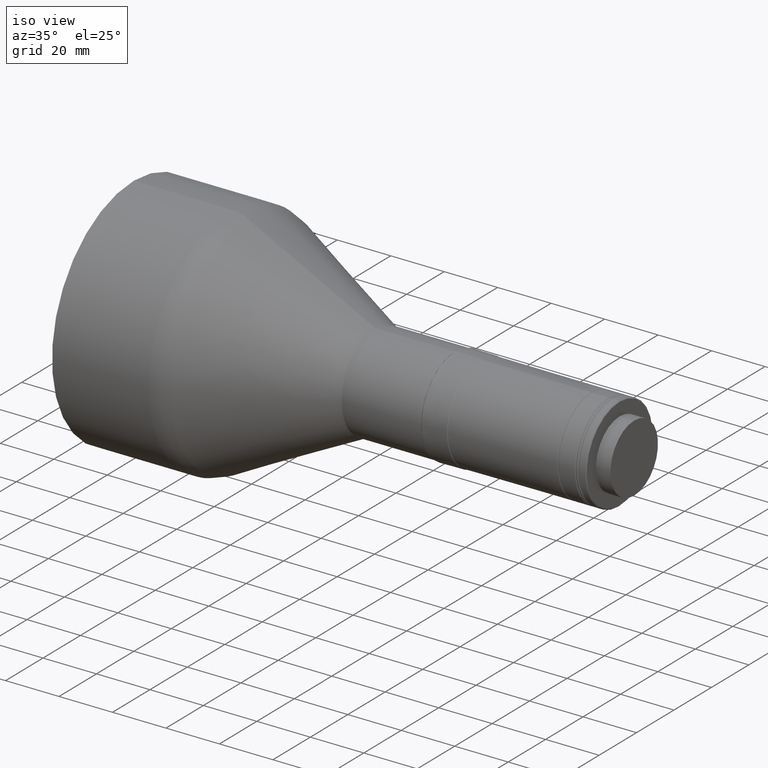
[diagram: clean part render]
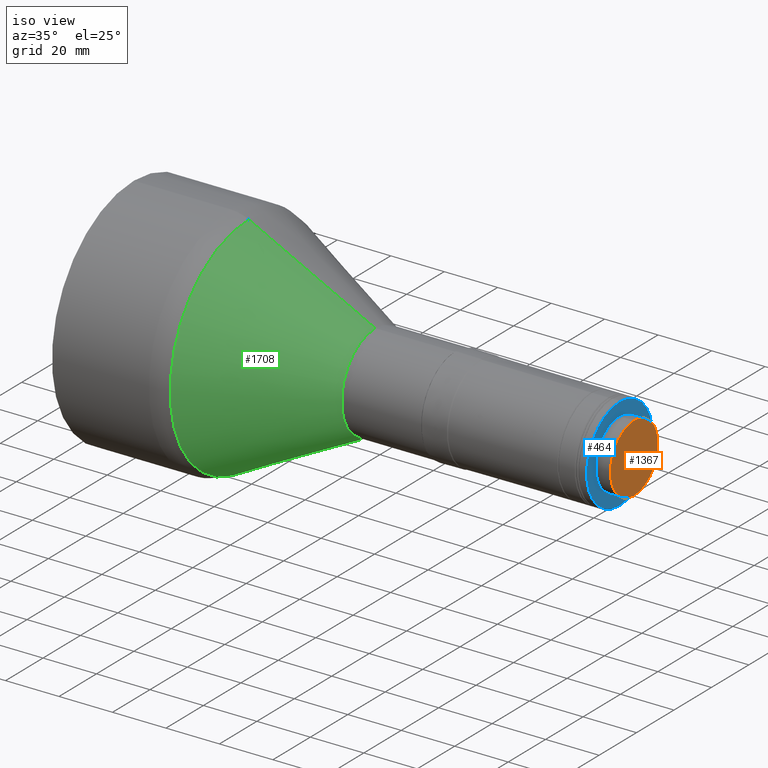
[diagram: same view with three faces highlighted in distinct colors, each labeled with its STEP entity id]
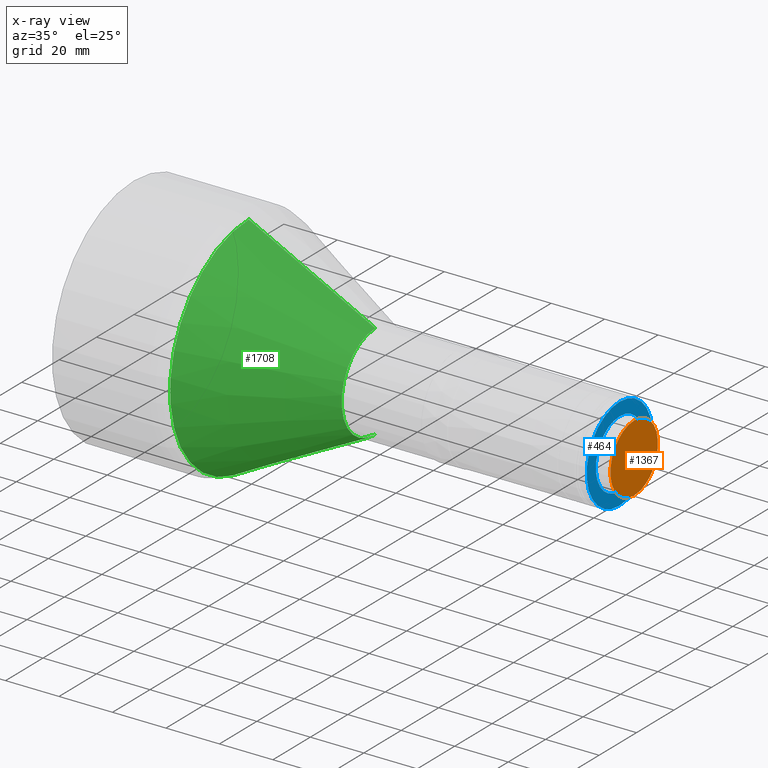
[diagram: x-ray of the same camera — body ghosted, the three highlighted faces saturated]
A machine part, iso view with three faces highlighted in distinct colors.
The next image is the same camera in x-ray (body ghosted, the three faces saturated) — at least one of them is partly hidden behind the body in this view.
Their STEP definitions:

[orange] entity #1367 — the highlighted planar face has unit normal (1, 0, 0).
#35 = PLANE ( 'NONE',  #1332 ) ;
#155 = ORIENTED_EDGE ( 'NONE', *, *, #2130, .F. ) ;
#468 = DIRECTION ( 'NONE',  ( 0.0000000000000000000, 0.0000000000000000000, 1.000000000000000000 ) ) ;
#479 = ORIENTED_EDGE ( 'NONE', *, *, #1539, .F. ) ;
#764 = DIRECTION ( 'NONE',  ( 1.000000000000000000, 0.0000000000000000000, 0.0000000000000000000 ) ) ;
#982 = AXIS2_PLACEMENT_3D ( 'NONE', #1680, #2072, #468 ) ;
#1082 = VERTEX_POINT ( 'NONE', #1913 ) ;
#1118 = CIRCLE ( 'NONE', #982, 12.69999999992158000 ) ;
#1332 = AXIS2_PLACEMENT_3D ( 'NONE', #2038, #764, #2018 ) ;
#1366 = DIRECTION ( 'NONE',  ( -1.000000000000000000, -0.0000000000000000000, -0.0000000000000000000 ) ) ;
#1367 = ADVANCED_FACE ( 'NONE', ( #2209 ), #35, .T. ) ;
#1539 = EDGE_CURVE ( 'NONE', #1082, #1596, #1782, .T. ) ;
#1542 = CARTESIAN_POINT ( 'NONE',  ( 163.1284704778615500, 0.0000000000000000000, -176.8109999999215600 ) ) ;
#1596 = VERTEX_POINT ( 'NONE', #1542 ) ;
#1628 = EDGE_LOOP ( 'NONE', ( #155, #479 ) ) ;
#1680 = CARTESIAN_POINT ( 'NONE',  ( 163.1284704778615500, 0.0000000000000000000, -164.1109999999999900 ) ) ;
#1703 = AXIS2_PLACEMENT_3D ( 'NONE', #2096, #1366, #2268 ) ;
#1782 = CIRCLE ( 'NONE', #1703, 12.69999999992158000 ) ;
#1913 = CARTESIAN_POINT ( 'NONE',  ( 163.1284704778615500, 1.555301434907535800E-015, -151.4110000000783900 ) ) ;
#2018 = DIRECTION ( 'NONE',  ( 0.0000000000000000000, 0.0000000000000000000, -1.000000000000000000 ) ) ;
#2038 = CARTESIAN_POINT ( 'NONE',  ( 163.1284704778615500, 0.0000000000000000000, -164.1109999999999900 ) ) ;
#2072 = DIRECTION ( 'NONE',  ( -1.000000000000000000, -0.0000000000000000000, -0.0000000000000000000 ) ) ;
#2096 = CARTESIAN_POINT ( 'NONE',  ( 163.1284704778615500, 0.0000000000000000000, -164.1109999999999900 ) ) ;
#2130 = EDGE_CURVE ( 'NONE', #1596, #1082, #1118, .T. ) ;
#2209 = FACE_OUTER_BOUND ( 'NONE', #1628, .T. ) ;
#2268 = DIRECTION ( 'NONE',  ( 0.0000000000000000000, 0.0000000000000000000, 1.000000000000000000 ) ) ;

[blue] entity #464 — the highlighted planar face has unit normal (1, 0, 0).
#33 = DIRECTION ( 'NONE',  ( 0.0000000000000000000, 0.0000000000000000000, 1.000000000000000000 ) ) ;
#45 = EDGE_CURVE ( 'NONE', #793, #1160, #1879, .T. ) ;
#60 = AXIS2_PLACEMENT_3D ( 'NONE', #1395, #148, #1208 ) ;
#142 = PLANE ( 'NONE',  #60 ) ;
#148 = DIRECTION ( 'NONE',  ( 1.000000000000000000, 0.0000000000000000000, 0.0000000000000000000 ) ) ;
#415 = CIRCLE ( 'NONE', #2143, 17.57567368403043100 ) ;
#464 = ADVANCED_FACE ( 'NONE', ( #1491, #1011 ), #142, .T. ) ;
#520 = EDGE_LOOP ( 'NONE', ( #911, #1440 ) ) ;
#526 = CARTESIAN_POINT ( 'NONE',  ( 157.6577700458919900, 0.0000000000000000000, -176.7783454461405500 ) ) ;
#631 = VERTEX_POINT ( 'NONE', #526 ) ;
#677 = DIRECTION ( 'NONE',  ( 0.0000000000000000000, 0.0000000000000000000, 1.000000000000000000 ) ) ;
#760 = DIRECTION ( 'NONE',  ( -1.000000000000000000, -0.0000000000000000000, -0.0000000000000000000 ) ) ;
#793 = VERTEX_POINT ( 'NONE', #1359 ) ;
#814 = AXIS2_PLACEMENT_3D ( 'NONE', #1202, #1402, #677 ) ;
#904 = DIRECTION ( 'NONE',  ( 0.0000000000000000000, 0.0000000000000000000, 1.000000000000000000 ) ) ;
#907 = VERTEX_POINT ( 'NONE', #2010 ) ;
#911 = ORIENTED_EDGE ( 'NONE', *, *, #2067, .T. ) ;
#966 = EDGE_CURVE ( 'NONE', #907, #631, #1770, .T. ) ;
#1011 = FACE_OUTER_BOUND ( 'NONE', #1963, .T. ) ;
#1049 = ORIENTED_EDGE ( 'NONE', *, *, #45, .F. ) ;
#1091 = CARTESIAN_POINT ( 'NONE',  ( 157.6577700458919900, 0.0000000000000000000, -164.1109999999999900 ) ) ;
#1111 = CARTESIAN_POINT ( 'NONE',  ( 157.6577700458919900, 0.0000000000000000000, -164.1109999999999900 ) ) ;
#1115 = AXIS2_PLACEMENT_3D ( 'NONE', #2042, #2079, #1164 ) ;
#1150 = CIRCLE ( 'NONE', #1374, 12.66734544614056500 ) ;
#1160 = VERTEX_POINT ( 'NONE', #1190 ) ;
#1164 = DIRECTION ( 'NONE',  ( 0.0000000000000000000, 0.0000000000000000000, 1.000000000000000000 ) ) ;
#1190 = CARTESIAN_POINT ( 'NONE',  ( 157.6577700458919900, 2.170632033932781200E-015, -181.6866736840304100 ) ) ;
#1202 = CARTESIAN_POINT ( 'NONE',  ( 157.6577700458919900, 0.0000000000000000000, -164.1109999999999900 ) ) ;
#1208 = DIRECTION ( 'NONE',  ( 0.0000000000000000000, 0.0000000000000000000, -1.000000000000000000 ) ) ;
#1258 = ORIENTED_EDGE ( 'NONE', *, *, #2170, .F. ) ;
#1359 = CARTESIAN_POINT ( 'NONE',  ( 157.6577700458919900, 0.0000000000000000000, -146.5353263159695400 ) ) ;
#1374 = AXIS2_PLACEMENT_3D ( 'NONE', #1111, #760, #904 ) ;
#1395 = CARTESIAN_POINT ( 'NONE',  ( 157.6577700458919900, 0.0000000000000000000, -164.1109999999999900 ) ) ;
#1402 = DIRECTION ( 'NONE',  ( -1.000000000000000000, -0.0000000000000000000, -0.0000000000000000000 ) ) ;
#1440 = ORIENTED_EDGE ( 'NONE', *, *, #966, .T. ) ;
#1491 = FACE_BOUND ( 'NONE', #520, .T. ) ;
#1770 = CIRCLE ( 'NONE', #1115, 12.66734544614056500 ) ;
#1835 = DIRECTION ( 'NONE',  ( -1.000000000000000000, -0.0000000000000000000, -0.0000000000000000000 ) ) ;
#1879 = CIRCLE ( 'NONE', #814, 17.57567368403043100 ) ;
#1963 = EDGE_LOOP ( 'NONE', ( #1049, #1258 ) ) ;
#2010 = CARTESIAN_POINT ( 'NONE',  ( 157.6577700458919900, 1.553301920169262000E-015, -151.4436545538594000 ) ) ;
#2042 = CARTESIAN_POINT ( 'NONE',  ( 157.6577700458919900, 0.0000000000000000000, -164.1109999999999900 ) ) ;
#2067 = EDGE_CURVE ( 'NONE', #631, #907, #1150, .T. ) ;
#2079 = DIRECTION ( 'NONE',  ( -1.000000000000000000, -0.0000000000000000000, -0.0000000000000000000 ) ) ;
#2143 = AXIS2_PLACEMENT_3D ( 'NONE', #1091, #1835, #33 ) ;
#2170 = EDGE_CURVE ( 'NONE', #1160, #793, #415, .T. ) ;

[green] entity #1708 — the highlighted conical surface has half-angle 26.96 deg.
#15 = CARTESIAN_POINT ( 'NONE',  ( 66.30158704577129900, 0.0000000000000000000, -164.1109999999999900 ) ) ;
#99 = DIRECTION ( 'NONE',  ( 0.0000000000000000000, 0.0000000000000000000, 1.000000000000000000 ) ) ;
#113 = ORIENTED_EDGE ( 'NONE', *, *, #766, .F. ) ;
#115 = DIRECTION ( 'NONE',  ( -0.8913258760542103200, 0.0000000000000000000, 0.4533631906939451500 ) ) ;
#146 = EDGE_CURVE ( 'NONE', #1143, #882, #1625, .T. ) ;
#366 = AXIS2_PLACEMENT_3D ( 'NONE', #1765, #1035, #1754 ) ;
#421 = FACE_OUTER_BOUND ( 'NONE', #827, .T. ) ;
#459 = DIRECTION ( 'NONE',  ( -1.000000000000000000, -0.0000000000000000000, -0.0000000000000000000 ) ) ;
#503 = LINE ( 'NONE', #1865, #2054 ) ;
#618 = DIRECTION ( 'NONE',  ( -0.8913258760542103200, 5.552097803345710100E-017, -0.4533631906939451500 ) ) ;
#669 = CARTESIAN_POINT ( 'NONE',  ( 66.30158704577129900, 2.204364238465237400E-015, -182.1109999999999900 ) ) ;
#703 = CARTESIAN_POINT ( 'NONE',  ( 18.97945200263012600, 0.0000000000000000000, -122.0411118592192300 ) ) ;
#766 = EDGE_CURVE ( 'NONE', #1293, #1801, #1319, .T. ) ;
#827 = EDGE_LOOP ( 'NONE', ( #2192, #2212, #1583, #113 ) ) ;
#882 = VERTEX_POINT ( 'NONE', #1237 ) ;
#1035 = DIRECTION ( 'NONE',  ( -1.000000000000000000, -0.0000000000000000000, -0.0000000000000000000 ) ) ;
#1131 = EDGE_CURVE ( 'NONE', #882, #1801, #1792, .T. ) ;
#1143 = VERTEX_POINT ( 'NONE', #669 ) ;
#1237 = CARTESIAN_POINT ( 'NONE',  ( 66.30158704577129900, 0.0000000000000000000, -146.1109999999999600 ) ) ;
#1293 = VERTEX_POINT ( 'NONE', #1799 ) ;
#1319 = CIRCLE ( 'NONE', #2086, 42.06988814078074800 ) ;
#1325 = CONICAL_SURFACE ( 'NONE', #366, 42.06988814078074800, 0.4705349788148567300 ) ;
#1394 = CARTESIAN_POINT ( 'NONE',  ( 18.97945200263012600, 0.0000000000000000000, -122.0411118592192300 ) ) ;
#1477 = DIRECTION ( 'NONE',  ( 0.0000000000000000000, 0.0000000000000000000, 1.000000000000000000 ) ) ;
#1563 = AXIS2_PLACEMENT_3D ( 'NONE', #15, #1843, #1477 ) ;
#1583 = ORIENTED_EDGE ( 'NONE', *, *, #1131, .T. ) ;
#1625 = CIRCLE ( 'NONE', #1563, 18.00000000000001400 ) ;
#1708 = ADVANCED_FACE ( 'NONE', ( #421 ), #1325, .T. ) ;
#1754 = DIRECTION ( 'NONE',  ( 0.0000000000000000000, 0.0000000000000000000, 1.000000000000000000 ) ) ;
#1765 = CARTESIAN_POINT ( 'NONE',  ( 18.97945200263012600, 0.0000000000000000000, -164.1109999999999900 ) ) ;
#1792 = LINE ( 'NONE', #1394, #2225 ) ;
#1799 = CARTESIAN_POINT ( 'NONE',  ( 18.97945200263012600, 5.251890948738172100E-015, -206.1808881407807200 ) ) ;
#1801 = VERTEX_POINT ( 'NONE', #703 ) ;
#1843 = DIRECTION ( 'NONE',  ( -1.000000000000000000, -0.0000000000000000000, -0.0000000000000000000 ) ) ;
#1865 = CARTESIAN_POINT ( 'NONE',  ( 18.97945200263012600, 5.152075385209433000E-015, -206.1808881407807200 ) ) ;
#2054 = VECTOR ( 'NONE', #618, 1000.000000000000200 ) ;
#2086 = AXIS2_PLACEMENT_3D ( 'NONE', #2263, #459, #99 ) ;
#2192 = ORIENTED_EDGE ( 'NONE', *, *, #2303, .F. ) ;
#2212 = ORIENTED_EDGE ( 'NONE', *, *, #146, .T. ) ;
#2225 = VECTOR ( 'NONE', #115, 1000.000000000000200 ) ;
#2263 = CARTESIAN_POINT ( 'NONE',  ( 18.97945200263012600, 0.0000000000000000000, -164.1109999999999900 ) ) ;
#2303 = EDGE_CURVE ( 'NONE', #1143, #1293, #503, .T. ) ;